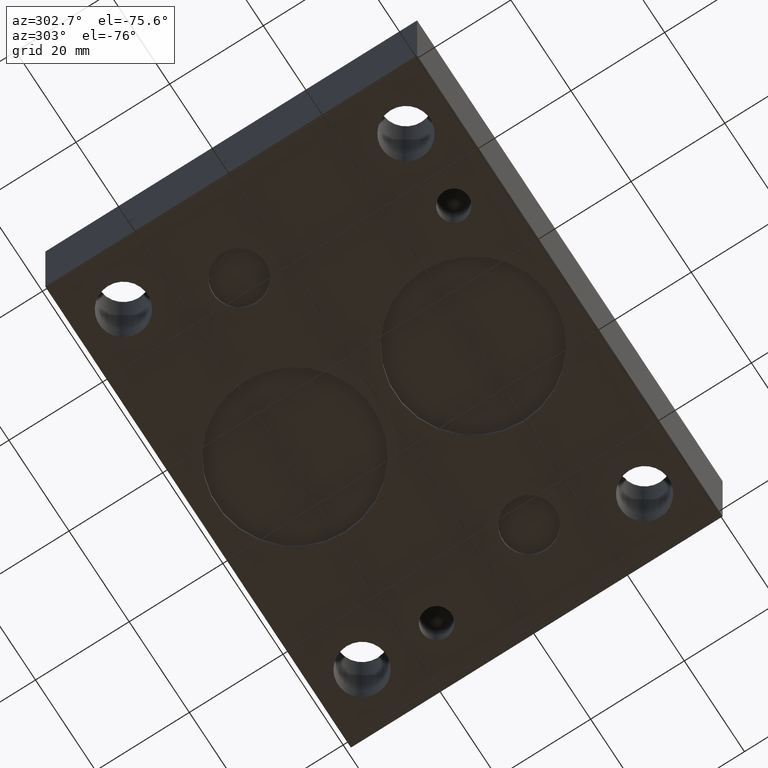
[diagram: clean part render]
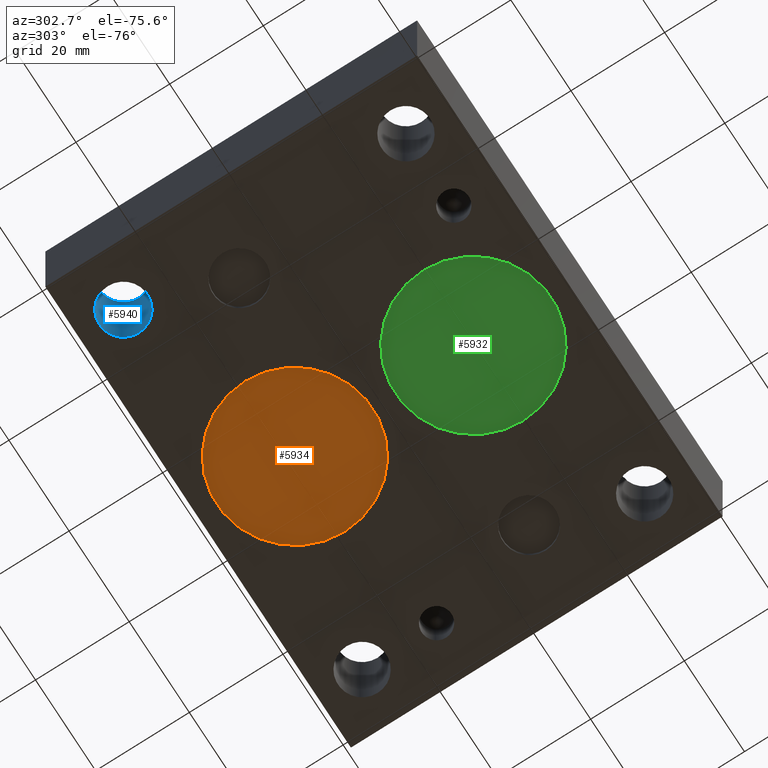
[diagram: same view with three faces highlighted in distinct colors, each labeled with its STEP entity id]
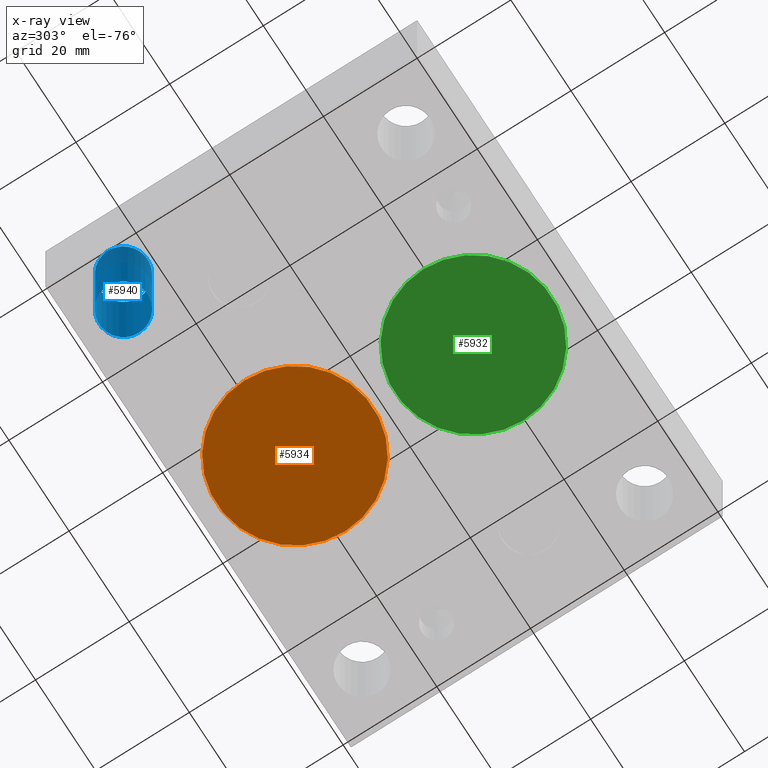
[diagram: x-ray of the same camera — body ghosted, the three highlighted faces saturated]
A machine part, auxiliary view with three faces highlighted in distinct colors.
The next image is the same camera in x-ray (body ghosted, the three faces saturated) — at least one of them is partly hidden behind the body in this view.
Their STEP definitions:

[orange] entity #5934 — the highlighted planar face has unit normal (0, 0, -1).
#30=CIRCLE('',#6180,16.6751);
#31=CIRCLE('',#6181,16.6751);
#300=PLANE('',#6182);
#589=FACE_OUTER_BOUND('',#911,.T.);
#911=EDGE_LOOP('',(#5217,#5218));
#2848=VERTEX_POINT('',#9942);
#2849=VERTEX_POINT('',#9944);
#3648=EDGE_CURVE('',#2849,#2848,#30,.T.);
#3649=EDGE_CURVE('',#2848,#2849,#31,.T.);
#5217=ORIENTED_EDGE('',*,*,#3648,.T.);
#5218=ORIENTED_EDGE('',*,*,#3649,.T.);
#5934=ADVANCED_FACE('',(#589),#300,.T.);
#6180=AXIS2_PLACEMENT_3D('',#9945,#7253,#7254);
#6181=AXIS2_PLACEMENT_3D('',#9946,#7255,#7256);
#6182=AXIS2_PLACEMENT_3D('',#9947,#7257,#7258);
#7253=DIRECTION('center_axis',(0.,0.,-1.));
#7254=DIRECTION('ref_axis',(1.,0.,0.));
#7255=DIRECTION('center_axis',(0.,0.,-1.));
#7256=DIRECTION('ref_axis',(1.,0.,0.));
#7257=DIRECTION('center_axis',(0.,0.,-1.));
#7258=DIRECTION('ref_axis',(1.,0.,0.));
#9942=CARTESIAN_POINT('',(34.1503,58.7248,1.016));
#9944=CARTESIAN_POINT('',(67.5005,58.7248,1.016));
#9945=CARTESIAN_POINT('Origin',(50.8254,58.7248,1.016));
#9946=CARTESIAN_POINT('Origin',(50.8254,58.7248,1.016));
#9947=CARTESIAN_POINT('Origin',(50.8254,58.7248,1.016));

[blue] entity #5940 — the highlighted cylindrical surface (bore or boss wall) has radius 5.1562 mm, axis along (0, 0, -1).
#43=CIRCLE('',#6200,5.1562);
#44=CIRCLE('',#6201,5.1562);
#45=CIRCLE('',#6202,5.1562);
#59=CYLINDRICAL_SURFACE('',#6199,5.1562);
#595=FACE_OUTER_BOUND('',#917,.T.);
#917=EDGE_LOOP('',(#5244,#5245,#5246,#5247,#5248));
#1545=LINE('',#9988,#2161);
#2161=VECTOR('',#7302,5.1562);
#2863=VERTEX_POINT('',#9983);
#2864=VERTEX_POINT('',#9984);
#2865=VERTEX_POINT('',#9987);
#3666=EDGE_CURVE('',#2863,#2864,#43,.T.);
#3667=EDGE_CURVE('',#2864,#2863,#44,.T.);
#3668=EDGE_CURVE('',#2864,#2865,#1545,.T.);
#3669=EDGE_CURVE('',#2865,#2865,#45,.T.);
#5244=ORIENTED_EDGE('',*,*,#3666,.F.);
#5245=ORIENTED_EDGE('',*,*,#3667,.F.);
#5246=ORIENTED_EDGE('',*,*,#3668,.T.);
#5247=ORIENTED_EDGE('',*,*,#3669,.F.);
#5248=ORIENTED_EDGE('',*,*,#3668,.F.);
#5940=ADVANCED_FACE('',(#595),#59,.F.);
#6199=AXIS2_PLACEMENT_3D('',#9982,#7296,#7297);
#6200=AXIS2_PLACEMENT_3D('',#9985,#7298,#7299);
#6201=AXIS2_PLACEMENT_3D('',#9986,#7300,#7301);
#6202=AXIS2_PLACEMENT_3D('',#9989,#7303,#7304);
#7296=DIRECTION('center_axis',(0.,0.,-1.));
#7297=DIRECTION('ref_axis',(1.,0.,0.));
#7298=DIRECTION('center_axis',(0.,0.,1.));
#7299=DIRECTION('ref_axis',(1.,0.,0.));
#7300=DIRECTION('center_axis',(0.,0.,1.));
#7301=DIRECTION('ref_axis',(1.,0.,0.));
#7302=DIRECTION('',(0.,0.,1.));
#7303=DIRECTION('center_axis',(0.,0.,-1.));
#7304=DIRECTION('ref_axis',(1.,0.,0.));
#9982=CARTESIAN_POINT('Origin',(11.1252,69.85,131.40818324975));
#9983=CARTESIAN_POINT('',(16.2814,69.85,0.));
#9984=CARTESIAN_POINT('',(5.969,69.85,0.));
#9985=CARTESIAN_POINT('Origin',(11.1252,69.85,0.));
#9986=CARTESIAN_POINT('Origin',(11.1252,69.85,0.));
#9987=CARTESIAN_POINT('',(5.969,69.85,25.4));
#9988=CARTESIAN_POINT('',(5.969,69.85,131.40818324975));
#9989=CARTESIAN_POINT('Origin',(11.1252,69.85,25.4));

[green] entity #5932 — the highlighted planar face has unit normal (0, 0, -1).
#26=CIRCLE('',#6174,16.6751);
#27=CIRCLE('',#6175,16.6751);
#299=PLANE('',#6176);
#587=FACE_OUTER_BOUND('',#909,.T.);
#909=EDGE_LOOP('',(#5209,#5210));
#2844=VERTEX_POINT('',#9931);
#2845=VERTEX_POINT('',#9933);
#3643=EDGE_CURVE('',#2845,#2844,#26,.T.);
#3644=EDGE_CURVE('',#2844,#2845,#27,.T.);
#5209=ORIENTED_EDGE('',*,*,#3643,.T.);
#5210=ORIENTED_EDGE('',*,*,#3644,.T.);
#5932=ADVANCED_FACE('',(#587),#299,.T.);
#6174=AXIS2_PLACEMENT_3D('',#9934,#7240,#7241);
#6175=AXIS2_PLACEMENT_3D('',#9935,#7242,#7243);
#6176=AXIS2_PLACEMENT_3D('',#9936,#7244,#7245);
#7240=DIRECTION('center_axis',(0.,0.,-1.));
#7241=DIRECTION('ref_axis',(1.,0.,0.));
#7242=DIRECTION('center_axis',(0.,0.,-1.));
#7243=DIRECTION('ref_axis',(1.,0.,0.));
#7244=DIRECTION('center_axis',(0.,0.,-1.));
#7245=DIRECTION('ref_axis',(1.,0.,0.));
#9931=CARTESIAN_POINT('',(34.1503,20.6248,1.016));
#9933=CARTESIAN_POINT('',(67.5005,20.6248,1.016));
#9934=CARTESIAN_POINT('Origin',(50.8254,20.6248,1.016));
#9935=CARTESIAN_POINT('Origin',(50.8254,20.6248,1.016));
#9936=CARTESIAN_POINT('Origin',(50.8254,20.6248,1.016));